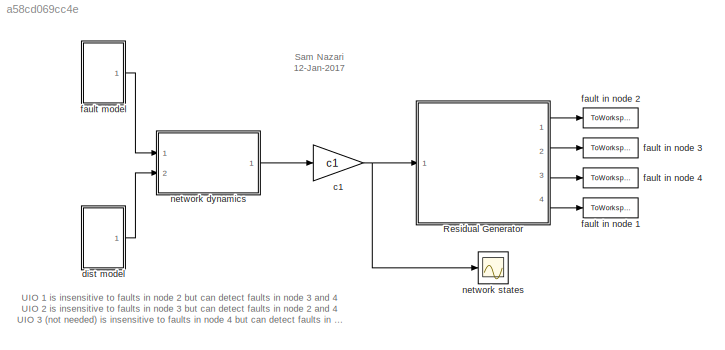
MODEL slx_a58cd069cc4e
KIND model
CONFIG AbsTol = auto
CONFIG EnableMultiTasking = on
CONFIG FixedStep = auto
CONFIG MaxStep = auto
CONFIG MinStep = auto
CONFIG RelTol = 1e-3
CONFIG SampleTimeConstraint = Unconstrained
CONFIG Solver = ode45
CONFIG SolverName = ode45
CONFIG StartTime = 0.0
CONFIG StopTime = 10.0
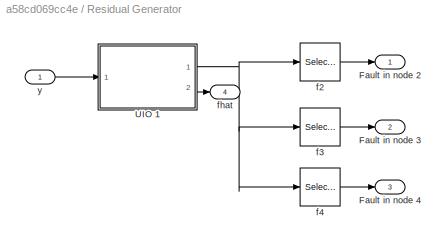
BLOCK [SubSystem] Residual Generator
  Ports = [1, 4]
  RequestExecContextInheritance = off
  Variant = off
BLOCK [Outport] Residual Generator/Fault in node 2
  IconDisplay = Port number
BLOCK [Outport] Residual Generator/Fault in node 3
  IconDisplay = Port number
  Port = 2
BLOCK [Outport] Residual Generator/Fault in node 4
  IconDisplay = Port number
  Port = 3
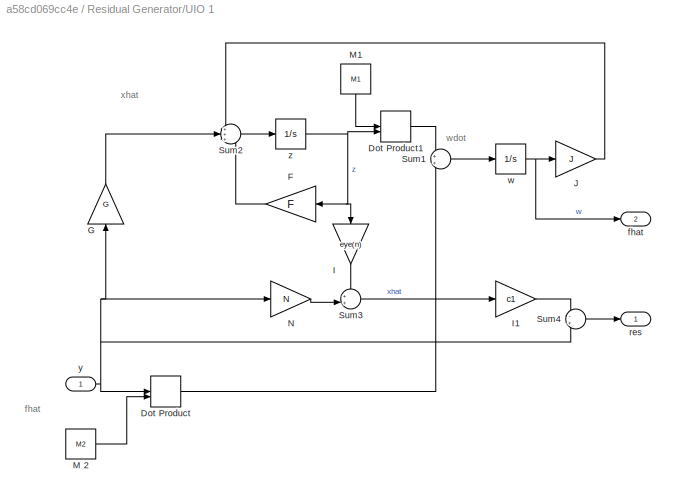
BLOCK [SubSystem] Residual Generator/UIO 1
  Ports = [1, 2]
  RequestExecContextInheritance = off
  Variant = off
BLOCK [DotProduct] Residual Generator/UIO 1/Dot Product
  OutDataTypeStr = Inherit: Inherit via internal rule
BLOCK [DotProduct] Residual Generator/UIO 1/Dot Product1
  OutDataTypeStr = Inherit: Inherit via internal rule
BLOCK [Gain] Residual Generator/UIO 1/F
  Gain = F
  Multiplication = Matrix(K*u)
  OutDataTypeStr = Inherit: Inherit via internal rule
  ParamDataTypeStr = Inherit: Inherit via internal rule
  SaturateOnIntegerOverflow = off
BLOCK [Gain] Residual Generator/UIO 1/G
  Gain = G
  Multiplication = Matrix(K*u)
  OutDataTypeStr = Inherit: Inherit via internal rule
  ParamDataTypeStr = Inherit: Inherit via internal rule
  SaturateOnIntegerOverflow = off
BLOCK [Gain] Residual Generator/UIO 1/I
  Gain = eye(n)
  Multiplication = Matrix(K*u)
  OutDataTypeStr = Inherit: Inherit via internal rule
  ParamDataTypeStr = Inherit: Inherit via internal rule
  SaturateOnIntegerOverflow = off
BLOCK [Gain] Residual Generator/UIO 1/I1
  Gain = c1
  Multiplication = Matrix(K*u)
  OutDataTypeStr = Inherit: Inherit via internal rule
  ParamDataTypeStr = Inherit: Inherit via internal rule
  SaturateOnIntegerOverflow = off
BLOCK [Gain] Residual Generator/UIO 1/J
  Gain = J
  OutDataTypeStr = Inherit: Inherit via internal rule
  ParamDataTypeStr = Inherit: Inherit via internal rule
  SaturateOnIntegerOverflow = off
BLOCK [Constant] Residual Generator/UIO 1/M 2
  Value = M2
BLOCK [Constant] Residual Generator/UIO 1/M1 
  Value = M1
BLOCK [Gain] Residual Generator/UIO 1/N
  Gain = N
  Multiplication = Matrix(K*u) (u vector)
  OutDataTypeStr = Inherit: Inherit via internal rule
  ParamDataTypeStr = Inherit: Inherit via internal rule
  SaturateOnIntegerOverflow = off
BLOCK [Sum] Residual Generator/UIO 1/Sum1
  IconShape = round
  InputSameDT = off
  OutDataTypeStr = Inherit: Inherit via internal rule
  Ports = [2, 1]
  SaturateOnIntegerOverflow = off
BLOCK [Sum] Residual Generator/UIO 1/Sum2
  IconShape = round
  InputSameDT = off
  Inputs = +++
  OutDataTypeStr = Inherit: Inherit via internal rule
  Ports = [3, 1]
  SaturateOnIntegerOverflow = off
BLOCK [Sum] Residual Generator/UIO 1/Sum3
  IconShape = round
  InputSameDT = off
  Inputs = ++|
  OutDataTypeStr = Inherit: Inherit via internal rule
  Ports = [2, 1]
  SaturateOnIntegerOverflow = off
BLOCK [Sum] Residual Generator/UIO 1/Sum4
  IconShape = round
  InputSameDT = off
  Inputs = -+
  OutDataTypeStr = Inherit: Inherit via internal rule
  Ports = [2, 1]
  SaturateOnIntegerOverflow = off
BLOCK [Outport] Residual Generator/UIO 1/fhat
  IconDisplay = Port number
  Port = 2
BLOCK [Outport] Residual Generator/UIO 1/res
  IconDisplay = Port number
BLOCK [Integrator] Residual Generator/UIO 1/w
  InitialCondition = x0
  Ports = [1, 1]
BLOCK [Inport] Residual Generator/UIO 1/y
  IconDisplay = Port number
BLOCK [Integrator] Residual Generator/UIO 1/z
  InitialCondition = x0
  Ports = [1, 1]
BLOCK [Selector] Residual Generator/f2
  IndexOptions = Index vector (dialog)
  Indices = 1
  InputPortWidth = 3
  OutputSizes = 1
  Ports = [1, 1]
BLOCK [Selector] Residual Generator/f3
  IndexOptions = Index vector (dialog)
  Indices = 2
  InputPortWidth = 3
  OutputSizes = 1
  Ports = [1, 1]
BLOCK [Selector] Residual Generator/f4
  IndexOptions = Index vector (dialog)
  Indices = 3
  InputPortWidth = 3
  OutputSizes = 1
  Ports = [1, 1]
BLOCK [Outport] Residual Generator/fhat
  IconDisplay = Port number
  Port = 4
BLOCK [Inport] Residual Generator/y
  IconDisplay = Port number
BLOCK [Gain] c1
  Gain = c1
  Multiplication = Matrix(K*u)
  OutDataTypeStr = Inherit: Inherit via internal rule
  ParamDataTypeStr = Inherit: Inherit via internal rule
  SaturateOnIntegerOverflow = off
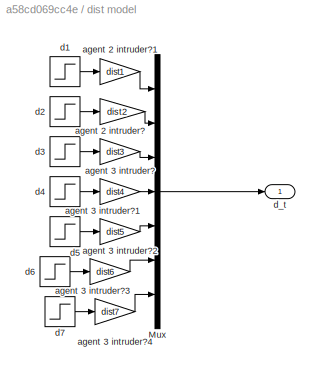
BLOCK [SubSystem] dist model
  Ports = [0, 1]
  RequestExecContextInheritance = off
  Variant = off
BLOCK [Mux] dist model/Mux
  DisplayOption = bar
  Inputs = 7
  Ports = [7, 1]
BLOCK [Gain] dist model/agent 2 intruder?
  Gain = dist2
  Multiplication = Matrix(K*u)
  OutDataTypeStr = Inherit: Inherit via internal rule
  ParamDataTypeStr = Inherit: Inherit via internal rule
  SaturateOnIntegerOverflow = off
BLOCK [Gain] dist model/agent 2 intruder?1
  Gain = dist1
  Multiplication = Matrix(K*u)
  OutDataTypeStr = Inherit: Inherit via internal rule
  ParamDataTypeStr = Inherit: Inherit via internal rule
  SaturateOnIntegerOverflow = off
BLOCK [Gain] dist model/agent 3 intruder?
  Gain = dist3
  OutDataTypeStr = Inherit: Inherit via internal rule
  ParamDataTypeStr = Inherit: Inherit via internal rule
  SaturateOnIntegerOverflow = off
BLOCK [Gain] dist model/agent 3 intruder?1
  Gain = dist4
  OutDataTypeStr = Inherit: Inherit via internal rule
  ParamDataTypeStr = Inherit: Inherit via internal rule
  SaturateOnIntegerOverflow = off
BLOCK [Gain] dist model/agent 3 intruder?2
  Gain = dist5
  OutDataTypeStr = Inherit: Inherit via internal rule
  ParamDataTypeStr = Inherit: Inherit via internal rule
  SaturateOnIntegerOverflow = off
BLOCK [Gain] dist model/agent 3 intruder?3
  Gain = dist6
  OutDataTypeStr = Inherit: Inherit via internal rule
  ParamDataTypeStr = Inherit: Inherit via internal rule
  SaturateOnIntegerOverflow = off
BLOCK [Gain] dist model/agent 3 intruder?4
  Gain = dist7
  OutDataTypeStr = Inherit: Inherit via internal rule
  ParamDataTypeStr = Inherit: Inherit via internal rule
  SaturateOnIntegerOverflow = off
BLOCK [Step] dist model/d1
  After = d1Val
  SampleTime = dt1
BLOCK [Step] dist model/d2
  After = d2Val
  SampleTime = dt2
BLOCK [Step] dist model/d3
  After = d3Val
  SampleTime = dt3
BLOCK [Step] dist model/d4
  After = d4Val
  SampleTime = dt4
BLOCK [Step] dist model/d5
  After = d5Val
  SampleTime = dt5
BLOCK [Step] dist model/d6
  After = d6Val
  SampleTime = dt6
BLOCK [Step] dist model/d7
  After = d7Val
  SampleTime = dt7
BLOCK [Outport] dist model/d_t
  IconDisplay = Port number
BLOCK [ToWorkspace] fault in node 1
  FixptAsFi = on
  MaxDataPoints = inf
  Ports = [1]
  SampleTime = -1
  Save2DSignal = 3-D array (concatenate along third dimension)
  SaveFormat = Timeseries
  VariableName = fhat
BLOCK [ToWorkspace] fault in node 2
  FixptAsFi = on
  MaxDataPoints = inf
  Ports = [1]
  SampleTime = -1
  Save2DSignal = 3-D array (concatenate along third dimension)
  SaveFormat = Timeseries
  VariableName = fn2
BLOCK [ToWorkspace] fault in node 3
  FixptAsFi = on
  MaxDataPoints = inf
  Ports = [1]
  SampleTime = -1
  Save2DSignal = 3-D array (concatenate along third dimension)
  SaveFormat = Timeseries
  VariableName = fn3
BLOCK [ToWorkspace] fault in node 4
  FixptAsFi = on
  MaxDataPoints = inf
  Ports = [1]
  SampleTime = -1
  Save2DSignal = 3-D array (concatenate along third dimension)
  SaveFormat = Timeseries
  VariableName = fn4
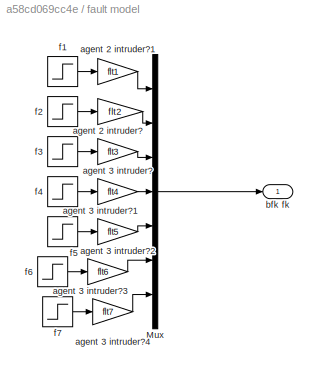
BLOCK [SubSystem] fault model
  Ports = [0, 1]
  RequestExecContextInheritance = off
  Variant = off
BLOCK [Mux] fault model/Mux
  DisplayOption = bar
  Inputs = 7
  Ports = [7, 1]
BLOCK [Gain] fault model/agent 2 intruder?
  Gain = flt2
  Multiplication = Matrix(K*u)
  OutDataTypeStr = Inherit: Inherit via internal rule
  ParamDataTypeStr = Inherit: Inherit via internal rule
  SaturateOnIntegerOverflow = off
BLOCK [Gain] fault model/agent 2 intruder?1
  Gain = flt1
  Multiplication = Matrix(K*u)
  OutDataTypeStr = Inherit: Inherit via internal rule
  ParamDataTypeStr = Inherit: Inherit via internal rule
  SaturateOnIntegerOverflow = off
BLOCK [Gain] fault model/agent 3 intruder?
  Gain = flt3
  OutDataTypeStr = Inherit: Inherit via internal rule
  ParamDataTypeStr = Inherit: Inherit via internal rule
  SaturateOnIntegerOverflow = off
BLOCK [Gain] fault model/agent 3 intruder?1
  Gain = flt4
  OutDataTypeStr = Inherit: Inherit via internal rule
  ParamDataTypeStr = Inherit: Inherit via internal rule
  SaturateOnIntegerOverflow = off
BLOCK [Gain] fault model/agent 3 intruder?2
  Gain = flt5
  OutDataTypeStr = Inherit: Inherit via internal rule
  ParamDataTypeStr = Inherit: Inherit via internal rule
  SaturateOnIntegerOverflow = off
BLOCK [Gain] fault model/agent 3 intruder?3
  Gain = flt6
  OutDataTypeStr = Inherit: Inherit via internal rule
  ParamDataTypeStr = Inherit: Inherit via internal rule
  SaturateOnIntegerOverflow = off
BLOCK [Gain] fault model/agent 3 intruder?4
  Gain = flt7
  OutDataTypeStr = Inherit: Inherit via internal rule
  ParamDataTypeStr = Inherit: Inherit via internal rule
  SaturateOnIntegerOverflow = off
BLOCK [Outport] fault model/bfk fk
  IconDisplay = Port number
BLOCK [Step] fault model/f1
  After = f1Val
  SampleTime = tf1
BLOCK [Step] fault model/f2
  After = f2Val
  SampleTime = tf2
BLOCK [Step] fault model/f3
  After = f3Val
  SampleTime = tf3
BLOCK [Step] fault model/f4
  After = f4Val
  SampleTime = tf4
BLOCK [Step] fault model/f5
  After = f5Val
  SampleTime = tf5
BLOCK [Step] fault model/f6
  After = f6Val
  SampleTime = tf6
BLOCK [Step] fault model/f7
  After = f7Val
  SampleTime = tf7
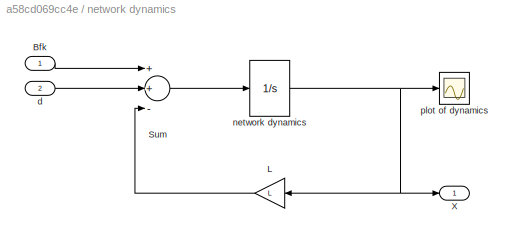
BLOCK [SubSystem] network dynamics
  Ports = [2, 1]
  RequestExecContextInheritance = off
  Variant = off
BLOCK [Inport] network dynamics/Bfk
  IconDisplay = Port number
BLOCK [Gain] network dynamics/L
  Gain = L
  Multiplication = Matrix(K*u)
  OutDataTypeStr = Inherit: Inherit via internal rule
  ParamDataTypeStr = Inherit: Inherit via internal rule
  SaturateOnIntegerOverflow = off
BLOCK [Sum] network dynamics/Sum
  InputSameDT = off
  Inputs = ++-
  OutDataTypeStr = Inherit: Inherit via internal rule
  Ports = [3, 1]
  SaturateOnIntegerOverflow = off
BLOCK [Outport] network dynamics/X
  IconDisplay = Port number
BLOCK [Inport] network dynamics/d
  IconDisplay = Port number
  Port = 2
BLOCK [Integrator] network dynamics/network dynamics
  InitialCondition = x0
  Ports = [1, 1]
BLOCK [Scope] network dynamics/plot of dynamics
  NumInputPorts = 1
  Ports = [1]
  ScopeSpecificationString = Simulink.scopes.TimeScopeBlockCfg('CurrentConfiguration', extmgr.ConfigurationSet(extmgr.Configuration('Core','General UI',true),extmgr.Configuration('Core','Source UI',true),extmgr.Configuration('Sources','WiredSimulink',true,'DataLoggingSaveFormat','StructureWithTime','DataLoggingDecimation','1','DataLoggingDecimateData',true),extmgr.Configuration('Visuals','Time Domain',true,'SerializedDisplays...<+1822ch>
BLOCK [Scope] network states
  NumInputPorts = 1
  Ports = [1]
  ScopeSpecificationString = Simulink.scopes.TimeScopeBlockCfg('CurrentConfiguration', extmgr.ConfigurationSet(extmgr.Configuration('Core','General UI',true),extmgr.Configuration('Core','Source UI',true),extmgr.Configuration('Sources','WiredSimulink',true,'DataLoggingVariableName','ScopeData1'),extmgr.Configuration('Visuals','Time Domain',true,'SerializedDisplays',{struct('MinYLimReal','-3.60714','MaxYLimReal','32.46428','YLa...<+1437ch>
ANNOTATION (root): Sam Nazari 12-Jan-2017
ANNOTATION (root): UIO 1 is insensitive to faults in node 2 but can detect faults in node 3 and 4 UIO 2 is insensitive to faults in node 3 but can detect faults in node 2 and 4 UIO 3 (not needed) is insensitive to faults in node 4 but can detect faults in nodes 2, 3
ANNOTATION Residual Generator/UIO 1: fhat
ANNOTATION Residual Generator/UIO 1: wdot
ANNOTATION Residual Generator/UIO 1: xhat
LINE Residual Generator/UIO 1/Dot Product1:1 -> Residual Generator/UIO 1/Sum1:1
LINE Residual Generator/UIO 1/Dot Product:1 -> Residual Generator/UIO 1/Sum1:2
LINE Residual Generator/UIO 1/F:1 -> Residual Generator/UIO 1/Sum2:3
LINE Residual Generator/UIO 1/G:1 -> Residual Generator/UIO 1/Sum2:2
LINE Residual Generator/UIO 1/I1:1 -> Residual Generator/UIO 1/Sum4:1
LINE Residual Generator/UIO 1/I:1 -> Residual Generator/UIO 1/Sum3:1
LINE Residual Generator/UIO 1/J:1 -> Residual Generator/UIO 1/Sum2:1
LINE Residual Generator/UIO 1/M 2:1 -> Residual Generator/UIO 1/Dot Product:2
LINE Residual Generator/UIO 1/M1 :1 -> Residual Generator/UIO 1/Dot Product1:1
LINE Residual Generator/UIO 1/N:1 -> Residual Generator/UIO 1/Sum3:2
LINE Residual Generator/UIO 1/Sum1:1 -> Residual Generator/UIO 1/w:1
LINE Residual Generator/UIO 1/Sum2:1 -> Residual Generator/UIO 1/z:1
LINE Residual Generator/UIO 1/Sum3:1 -> Residual Generator/UIO 1/I1:1
LINE Residual Generator/UIO 1/Sum4:1 -> Residual Generator/UIO 1/res:1
NET Residual Generator/UIO 1/w:1 -> Residual Generator/UIO 1/J:1, Residual Generator/UIO 1/fhat:1
NET Residual Generator/UIO 1/y:1 -> Residual Generator/UIO 1/Dot Product:1, Residual Generator/UIO 1/G:1, Residual Generator/UIO 1/N:1, Residual Generator/UIO 1/Sum4:2
NET Residual Generator/UIO 1/z:1 -> Residual Generator/UIO 1/Dot Product1:2, Residual Generator/UIO 1/F:1, Residual Generator/UIO 1/I:1
NET Residual Generator/UIO 1:1 -> Residual Generator/f2:1, Residual Generator/f3:1, Residual Generator/f4:1
LINE Residual Generator/UIO 1:2 -> Residual Generator/fhat:1
LINE Residual Generator/f2:1 -> Residual Generator/Fault in node 2:1
LINE Residual Generator/f3:1 -> Residual Generator/Fault in node 3:1
LINE Residual Generator/f4:1 -> Residual Generator/Fault in node 4:1
LINE Residual Generator/y:1 -> Residual Generator/UIO 1:1
LINE Residual Generator:1 -> fault in node 2:1
LINE Residual Generator:2 -> fault in node 3:1
LINE Residual Generator:3 -> fault in node 4:1
LINE Residual Generator:4 -> fault in node 1:1
NET c1:1 -> Residual Generator:1, network states:1
LINE dist model/Mux:1 -> dist model/d_t:1
LINE dist model/agent 2 intruder?1:1 -> dist model/Mux:1
LINE dist model/agent 2 intruder?:1 -> dist model/Mux:2
LINE dist model/agent 3 intruder?1:1 -> dist model/Mux:4
LINE dist model/agent 3 intruder?2:1 -> dist model/Mux:5
LINE dist model/agent 3 intruder?3:1 -> dist model/Mux:6
LINE dist model/agent 3 intruder?4:1 -> dist model/Mux:7
LINE dist model/agent 3 intruder?:1 -> dist model/Mux:3
LINE dist model/d1:1 -> dist model/agent 2 intruder?1:1
LINE dist model/d2:1 -> dist model/agent 2 intruder?:1
LINE dist model/d3:1 -> dist model/agent 3 intruder?:1
LINE dist model/d4:1 -> dist model/agent 3 intruder?1:1
LINE dist model/d5:1 -> dist model/agent 3 intruder?2:1
LINE dist model/d6:1 -> dist model/agent 3 intruder?3:1
LINE dist model/d7:1 -> dist model/agent 3 intruder?4:1
LINE dist model:1 -> network dynamics:2
LINE fault model/Mux:1 -> fault model/bfk fk:1
LINE fault model/agent 2 intruder?1:1 -> fault model/Mux:1
LINE fault model/agent 2 intruder?:1 -> fault model/Mux:2
LINE fault model/agent 3 intruder?1:1 -> fault model/Mux:4
LINE fault model/agent 3 intruder?2:1 -> fault model/Mux:5
LINE fault model/agent 3 intruder?3:1 -> fault model/Mux:6
LINE fault model/agent 3 intruder?4:1 -> fault model/Mux:7
LINE fault model/agent 3 intruder?:1 -> fault model/Mux:3
LINE fault model/f1:1 -> fault model/agent 2 intruder?1:1
LINE fault model/f2:1 -> fault model/agent 2 intruder?:1
LINE fault model/f3:1 -> fault model/agent 3 intruder?:1
LINE fault model/f4:1 -> fault model/agent 3 intruder?1:1
LINE fault model/f5:1 -> fault model/agent 3 intruder?2:1
LINE fault model/f6:1 -> fault model/agent 3 intruder?3:1
LINE fault model/f7:1 -> fault model/agent 3 intruder?4:1
LINE fault model:1 -> network dynamics:1
LINE network dynamics/Bfk:1 -> network dynamics/Sum:1
LINE network dynamics/L:1 -> network dynamics/Sum:3
LINE network dynamics/Sum:1 -> network dynamics/network dynamics:1
LINE network dynamics/d:1 -> network dynamics/Sum:2
NET network dynamics/network dynamics:1 -> network dynamics/L:1, network dynamics/X:1, network dynamics/plot of dynamics:1
LINE network dynamics:1 -> c1:1
note: NET lines group one-source signal fan-out (src -> all destinations, sorted); 1:1 wires keep LINE
